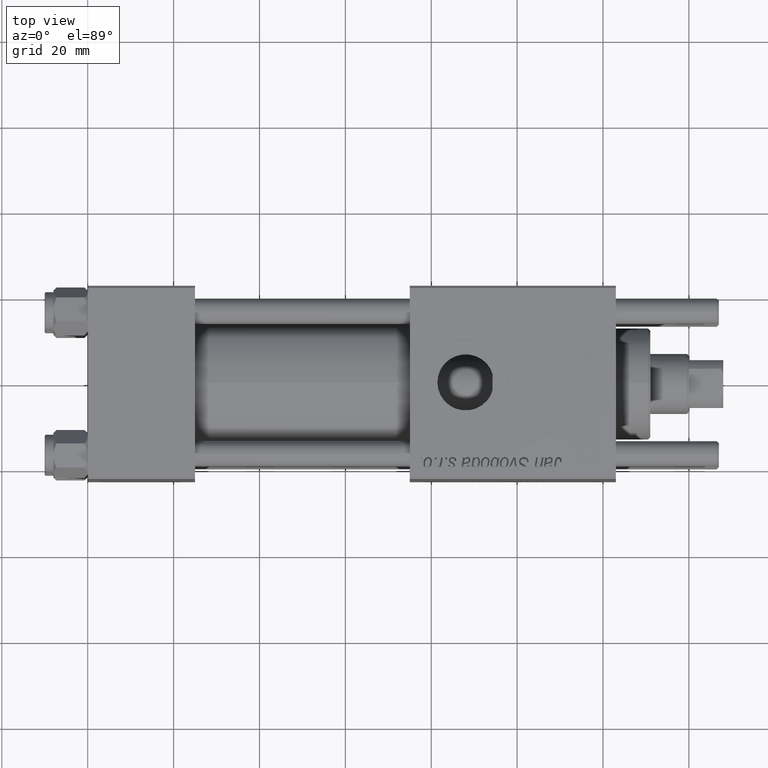
[diagram: clean part render]
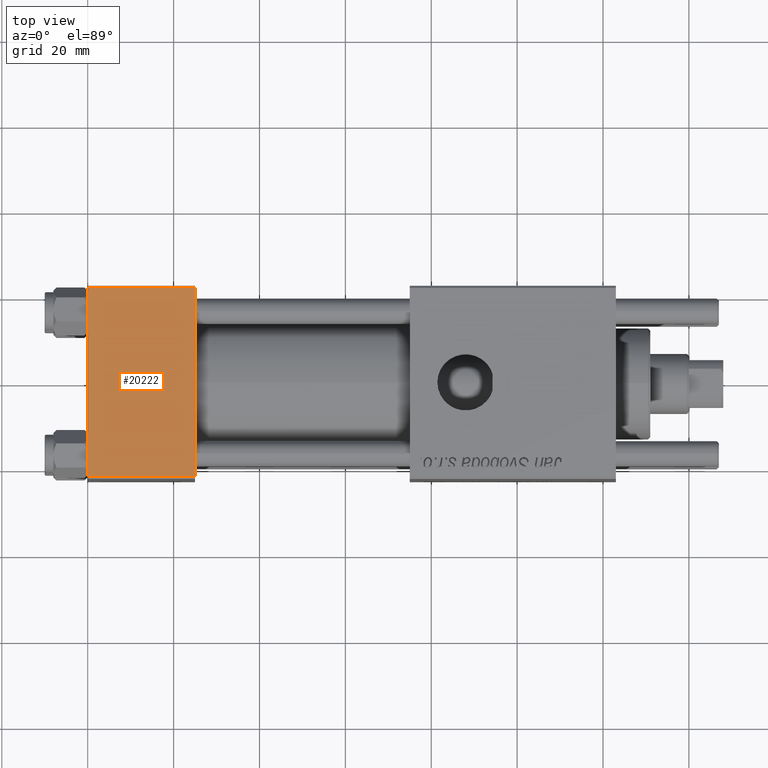
[diagram: same view with one face highlighted and labeled with its STEP entity id]
A machine part, top view. The second image highlights one B-rep face of the part: STEP entity #20222.
In plain terms, the highlighted planar face has unit normal (0, 0, -1).
Its self-contained STEP definition (entity closure, byte-faithful):
#956 = CARTESIAN_POINT ( 'NONE',  ( 0.000000000000000000, 21.99999999999999289, 22.50000000000000355 ) ) ;
#3077 = VERTEX_POINT ( 'NONE', #50829 ) ;
#3818 = VECTOR ( 'NONE', #7110, 1000.000000000000000 ) ;
#4015 = CARTESIAN_POINT ( 'NONE',  ( 25.00000000000000000, 22.50000000000000000, 22.50000000000000355 ) ) ;
#4790 = EDGE_CURVE ( 'NONE', #9791, #20274, #13885, .T. ) ;
#7110 = DIRECTION ( 'NONE',  ( 0.000000000000000000, -1.000000000000000000, -7.709882115452476934E-17 ) ) ;
#7703 = LINE ( 'NONE', #25217, #38949 ) ;
#8224 = CARTESIAN_POINT ( 'NONE',  ( 25.00000000000000000, 22.50000000000000000, 22.50000000000000355 ) ) ;
#9791 = VERTEX_POINT ( 'NONE', #23127 ) ;
#12895 = LINE ( 'NONE', #4015, #38369 ) ;
#12985 = VECTOR ( 'NONE', #17638, 1000.000000000000000 ) ;
#13885 = LINE ( 'NONE', #956, #12985 ) ;
#17454 = VERTEX_POINT ( 'NONE', #28272 ) ;
#17638 = DIRECTION ( 'NONE',  ( -1.000000000000000000, 0.000000000000000000, 0.000000000000000000 ) ) ;
#20035 = CARTESIAN_POINT ( 'NONE',  ( 0.000000000000000000, 22.50000000000000000, 22.50000000000000355 ) ) ;
#20222 = ADVANCED_FACE ( 'NONE', ( #47827 ), #52428, .F. ) ;
#20274 = VERTEX_POINT ( 'NONE', #21976 ) ;
#21717 = EDGE_CURVE ( 'NONE', #9791, #3077, #12895, .T. ) ;
#21741 = DIRECTION ( 'NONE',  ( 1.000000000000000000, 0.000000000000000000, 0.000000000000000000 ) ) ;
#21976 = CARTESIAN_POINT ( 'NONE',  ( 0.000000000000000000, 21.99999999999999289, 22.50000000000000355 ) ) ;
#23127 = CARTESIAN_POINT ( 'NONE',  ( 25.00000000000000000, 21.99999999999999289, 22.50000000000000355 ) ) ;
#25217 = CARTESIAN_POINT ( 'NONE',  ( 25.00000000000000000, -21.99999999999999289, 22.50000000000000000 ) ) ;
#28272 = CARTESIAN_POINT ( 'NONE',  ( 0.000000000000000000, -21.99999999999997868, 22.50000000000000000 ) ) ;
#28885 = ORIENTED_EDGE ( 'NONE', *, *, #21717, .F. ) ;
#30616 = DIRECTION ( 'NONE',  ( 0.000000000000000000, 1.000000000000000000, 7.709882115452476934E-17 ) ) ;
#33170 = EDGE_LOOP ( 'NONE', ( #55690, #53702, #28885, #55190 ) ) ;
#35570 = EDGE_CURVE ( 'NONE', #20274, #17454, #36986, .T. ) ;
#36986 = LINE ( 'NONE', #20035, #3818 ) ;
#38369 = VECTOR ( 'NONE', #39021, 1000.000000000000000 ) ;
#38949 = VECTOR ( 'NONE', #21741, 1000.000000000000000 ) ;
#39021 = DIRECTION ( 'NONE',  ( 0.000000000000000000, -1.000000000000000000, -7.709882115452476934E-17 ) ) ;
#47227 = EDGE_CURVE ( 'NONE', #17454, #3077, #7703, .T. ) ;
#47827 = FACE_OUTER_BOUND ( 'NONE', #33170, .T. ) ;
#50829 = CARTESIAN_POINT ( 'NONE',  ( 25.00000000000000000, -21.99999999999997868, 22.50000000000000000 ) ) ;
#52428 = PLANE ( 'NONE',  #53918 ) ;
#53702 = ORIENTED_EDGE ( 'NONE', *, *, #47227, .T. ) ;
#53918 = AXIS2_PLACEMENT_3D ( 'NONE', #8224, #56729, #30616 ) ;
#55190 = ORIENTED_EDGE ( 'NONE', *, *, #4790, .T. ) ;
#55690 = ORIENTED_EDGE ( 'NONE', *, *, #35570, .T. ) ;
#56729 = DIRECTION ( 'NONE',  ( 0.000000000000000000, 7.709882115452476934E-17, -1.000000000000000000 ) ) ;